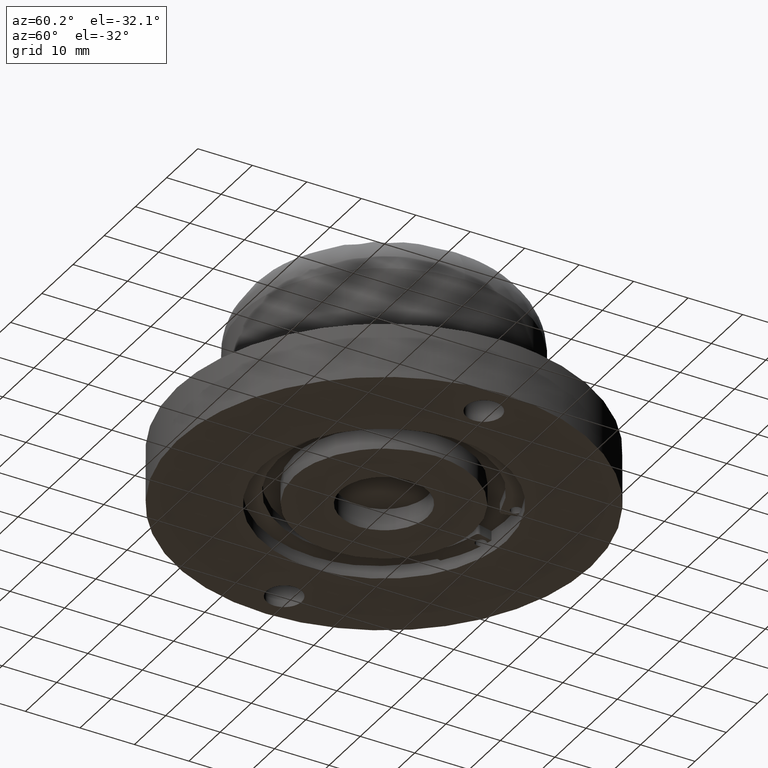
[diagram: clean part render]
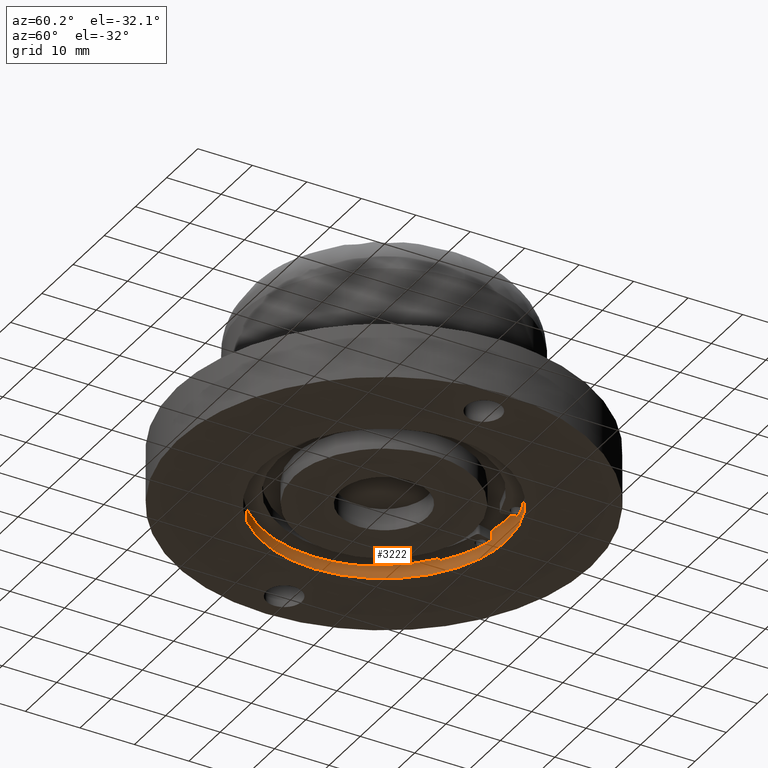
[diagram: same view with one face highlighted and labeled with its STEP entity id]
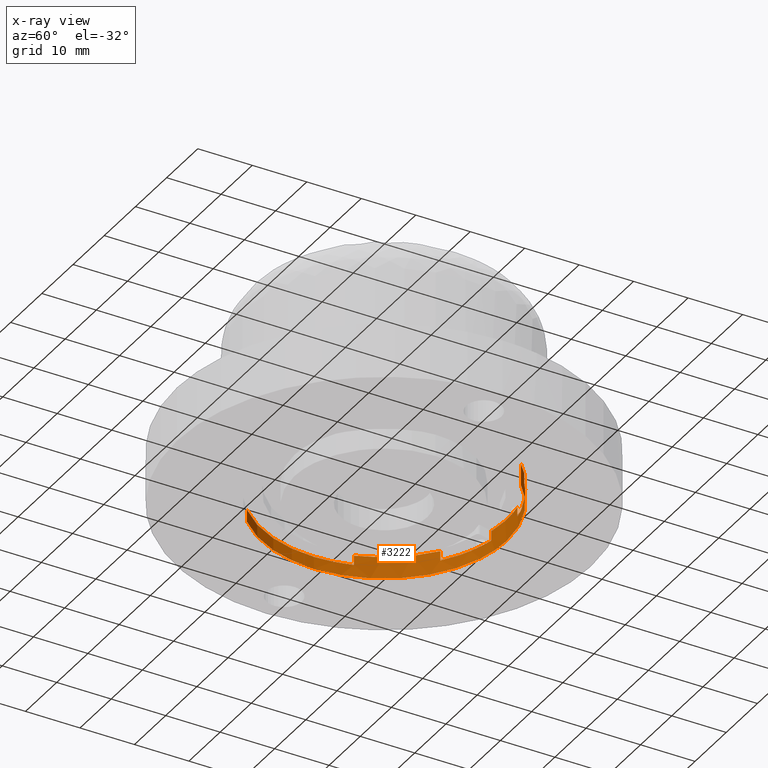
[diagram: x-ray of the same camera — body ghosted, the highlighted face saturated]
A machine part, auxiliary view. The second image highlights one B-rep face of the part: STEP entity #3222.
The next image is the same camera in x-ray: the body ghosted, the highlighted face saturated — about 0% of this face is hidden behind the body in this view.
In plain terms, the highlighted face is a freeform B-spline surface patch.
Its self-contained STEP definition (entity closure, byte-faithful):
#2364=CARTESIAN_POINT('',(-6.504722062905779,21.539233758059900,2.250000000000085));
#2365=VERTEX_POINT('',#2364);
#2366=CARTESIAN_POINT('',(-5.136362327996740,21.905884643984049,2.249999999999975));
#2367=VERTEX_POINT('',#2366);
#2380=CARTESIAN_POINT('',(-6.504722062905779,21.539233758059900,2.250000000000085));
#2381=CARTESIAN_POINT('',(-6.052603375519502,21.675773003639279,2.250000000000120));
#2382=CARTESIAN_POINT('',(-5.596178668092146,21.798070426248529,2.250000000000086));
#2383=CARTESIAN_POINT('',(-5.136362327996740,21.905884643984049,2.249999999999975));
#2384=B_SPLINE_CURVE_WITH_KNOTS('',3,(#2380,#2381,#2382,#2383),.UNSPECIFIED.,.F.,.U.,(4,4),(8.495293E-011,1.416867989774829),.UNSPECIFIED.);
#2385=EDGE_CURVE('',#2365,#2367,#2384,.T.);
#2470=CARTESIAN_POINT('',(5.136362327996699,21.905884643983999,2.249999999999975));
#2471=VERTEX_POINT('',#2470);
#2472=CARTESIAN_POINT('',(6.504722062905819,21.539233758059851,2.249999999999970));
#2473=VERTEX_POINT('',#2472);
#2485=CARTESIAN_POINT('',(5.136362327996699,21.905884643983999,2.249999999999975));
#2486=CARTESIAN_POINT('',(5.596179052469611,21.798070861049862,2.250000000000087));
#2487=CARTESIAN_POINT('',(6.052602842987307,21.675772483433452,2.250000000000085));
#2488=CARTESIAN_POINT('',(6.504722062905819,21.539233758059851,2.249999999999970));
#2489=B_SPLINE_CURVE_WITH_KNOTS('',3,(#2485,#2486,#2487,#2488),.UNSPECIFIED.,.F.,.U.,(4,4),(8.500756E-011,1.416867989774910),.UNSPECIFIED.);
#2490=EDGE_CURVE('',#2471,#2473,#2489,.T.);
#2514=CARTESIAN_POINT('',(13.429906843272720,18.052357247213351,4.0));
#2515=VERTEX_POINT('',#2514);
#2521=CARTESIAN_POINT('',(15.588206037484660,16.225222110434320,4.0));
#2522=VERTEX_POINT('',#2521);
#2523=CARTESIAN_POINT('',(13.429906843272720,18.052357247213351,4.0));
#2524=CARTESIAN_POINT('',(14.186702809971070,17.489372663616720,3.999999999999996));
#2525=CARTESIAN_POINT('',(14.908031253016111,16.878715912761059,4.000000000000003));
#2526=CARTESIAN_POINT('',(15.588206037484660,16.225222110434320,4.0));
#2527=B_SPLINE_CURVE_WITH_KNOTS('',3,(#2523,#2524,#2525,#2526),.UNSPECIFIED.,.F.,.U.,(4,4),(1.969314E-010,2.829711629103096),.UNSPECIFIED.);
#2528=EDGE_CURVE('',#2515,#2522,#2527,.T.);
#2577=CARTESIAN_POINT('',(15.588206218042719,16.225222286121198,-2.081668E-016));
#2578=VERTEX_POINT('',#2577);
#2590=CARTESIAN_POINT('',(0.000001007943022,22.499999999999979,0.0));
#2591=VERTEX_POINT('',#2590);
#2592=CARTESIAN_POINT('',(0.000001007943022,22.499999999999979,0.0));
#2593=CARTESIAN_POINT('',(1.031464791061655,22.500033471332500,-1.377429E-017));
#2594=CARTESIAN_POINT('',(3.228932577952548,22.348660912380151,-4.311955E-017));
#2595=CARTESIAN_POINT('',(6.261045358694753,21.685711134553099,-8.361076E-017));
#2596=CARTESIAN_POINT('',(9.423053938257208,20.521510945276511,-1.258366E-016));
#2597=CARTESIAN_POINT('',(12.545096142598901,18.818792101076070,-1.675287E-016));
#2598=CARTESIAN_POINT('',(14.618098912824980,17.157415711087410,-1.952119E-016));
#2599=CARTESIAN_POINT('',(15.588206218042719,16.225222286121198,-2.081668E-016));
#2600=B_SPLINE_CURVE_WITH_KNOTS('',3,(#2592,#2593,#2594,#2595,#2596,#2597,#2598,#2599),.UNSPECIFIED.,.F.,.U.,(4,1,1,1,1,4),(0.000000014214987,3.094395130818073,6.592423928549126,9.283186648686776,13.184840179715060,17.221014950261349),.UNSPECIFIED.);
#2601=EDGE_CURVE('',#2591,#2578,#2600,.T.);
#2603=CARTESIAN_POINT('',(-22.500000000000000,0.0,0.0));
#2604=VERTEX_POINT('',#2603);
#2605=CARTESIAN_POINT('',(-22.500000000000000,0.0,0.0));
#2606=CARTESIAN_POINT('',(-22.500182952519751,1.426608487800824,0.0));
#2607=CARTESIAN_POINT('',(-22.271602457947129,3.819550678833491,0.0));
#2608=CARTESIAN_POINT('',(-21.504889394045509,6.764989242450687,0.0));
#2609=CARTESIAN_POINT('',(-20.640253703201800,9.048035004577629,0.0));
#2610=CARTESIAN_POINT('',(-19.412171256211611,11.525781350607859,0.0));
#2611=CARTESIAN_POINT('',(-17.556918538102359,14.229992154828681,0.0));
#2612=CARTESIAN_POINT('',(-15.289956082207761,16.596348971107549,0.0));
#2613=CARTESIAN_POINT('',(-13.202865483555570,18.266672343695390,0.0));
#2614=CARTESIAN_POINT('',(-10.997410584448099,19.691923614740031,0.0));
#2615=CARTESIAN_POINT('',(-8.799577607448827,20.764623508752809,0.0));
#2616=CARTESIAN_POINT('',(-6.235194483915689,21.664431573952431,0.0));
#2617=CARTESIAN_POINT('',(-3.451428743835828,22.316547335375500,0.0));
#2618=CARTESIAN_POINT('',(-1.242527725207736,22.500094324819219,0.0));
#2619=CARTESIAN_POINT('',(0.000001007943022,22.499999999999979,0.0));
#2620=B_SPLINE_CURVE_WITH_KNOTS('',3,(#2605,#2606,#2607,#2608,#2609,#2610,#2611,#2612,#2613,#2614,#2615,#2616,#2617,#2618,#2619),.UNSPECIFIED.,.F.,.U.,(4,1,1,1,1,1,1,1,1,1,1,1,4),(0.000000054817100,4.279790776276776,7.179041361886796,9.111861811800601,11.596917949561940,15.462580665357670,18.913978660476051,21.399065161999069,23.469928968909532,26.783347539134891,28.716177032756210,31.615394907741042,35.342973363759093),.UNSPECIFIED.);
#2621=EDGE_CURVE('',#2604,#2591,#2620,.T.);
#2623=CARTESIAN_POINT('',(-15.588206217749841,-16.225222286402900,4.926615E-016));
#2624=VERTEX_POINT('',#2623);
#2625=CARTESIAN_POINT('',(-15.588206217749841,-16.225222286402900,4.926615E-016));
#2626=CARTESIAN_POINT('',(-16.268846323597760,-15.571326525871120,4.728066E-016));
#2627=CARTESIAN_POINT('',(-17.771532666538949,-13.933881893660290,4.230874E-016));
#2628=CARTESIAN_POINT('',(-19.708489801419599,-11.069884337755781,3.361252E-016));
#2629=CARTESIAN_POINT('',(-21.182002428894140,-7.838706148008069,2.380139E-016));
#2630=CARTESIAN_POINT('',(-22.229352483005300,-4.152850421680977,1.260968E-016));
#2631=CARTESIAN_POINT('',(-22.500261468602311,-1.557377847287326,4.728811E-017));
#2632=CARTESIAN_POINT('',(-22.500000000000000,0.0,0.0));
#2633=B_SPLINE_CURVE_WITH_KNOTS('',3,(#2625,#2626,#2627,#2628,#2629,#2630,#2631,#2632),.UNSPECIFIED.,.F.,.U.,(4,1,1,1,1,4),(0.000000014761255,2.831553560492784,6.654165831719793,10.335163101000580,13.449889630315999,18.121957143681879),.UNSPECIFIED.);
#2634=EDGE_CURVE('',#2624,#2604,#2633,.T.);
#2685=CARTESIAN_POINT('',(-4.164708885764315,22.111200779171551,4.0));
#2686=VERTEX_POINT('',#2685);
#2692=CARTESIAN_POINT('',(4.164708885764285,22.111200779171551,4.0));
#2693=VERTEX_POINT('',#2692);
#2694=CARTESIAN_POINT('',(-4.164708885764315,22.111200779171551,4.0));
#2695=CARTESIAN_POINT('',(-2.835442292612624,22.361724385078549,3.999999999999996));
#2696=CARTESIAN_POINT('',(-0.044390171950859,22.630172406018200,4.000000000000012));
#2697=CARTESIAN_POINT('',(2.749692616212752,22.377918640221210,3.999999999999996));
#2698=CARTESIAN_POINT('',(4.164708885764285,22.111200779171551,4.0));
#2699=B_SPLINE_CURVE_WITH_KNOTS('',3,(#2694,#2695,#2696,#2697,#2698),.UNSPECIFIED.,.F.,.U.,(4,1,4),(3.359716E-009,4.057977084328424,8.377741030497079),.UNSPECIFIED.);
#2700=EDGE_CURVE('',#2686,#2693,#2699,.T.);
#2792=CARTESIAN_POINT('',(-21.461298704985850,6.757415030569869,4.0));
#2793=VERTEX_POINT('',#2792);
#2794=CARTESIAN_POINT('',(-13.429906843272740,18.052357247213351,4.0));
#2795=VERTEX_POINT('',#2794);
#2796=CARTESIAN_POINT('',(-21.461298704985850,6.757415030569869,4.0));
#2797=CARTESIAN_POINT('',(-21.064756132127030,8.017268113349665,4.0));
#2798=CARTESIAN_POINT('',(-20.218073700707521,10.058459909686210,4.0));
#2799=CARTESIAN_POINT('',(-18.480202155929081,12.958793517843320,4.0));
#2800=CARTESIAN_POINT('',(-16.359714987495050,15.598159671998120,4.000000000000008));
#2801=CARTESIAN_POINT('',(-14.489680425976561,17.264098553640029,3.999999999999995));
#2802=CARTESIAN_POINT('',(-13.429906843272740,18.052357247213351,4.0));
#2803=B_SPLINE_CURVE_WITH_KNOTS('',3,(#2796,#2797,#2798,#2799,#2800,#2801,#2802),.UNSPECIFIED.,.F.,.U.,(4,1,1,1,4),(8.759422E-009,3.962332634549968,6.603894214295061,10.125954718178670,14.088287343969419),.UNSPECIFIED.);
#2804=EDGE_CURVE('',#2793,#2795,#2803,.T.);
#3058=CARTESIAN_POINT('',(-15.588206031640730,-16.225222116048808,2.250000000000231));
#3059=VERTEX_POINT('',#3058);
#3060=CARTESIAN_POINT('',(-15.588206031640730,-16.225222116048808,2.250000000000231));
#3061=CARTESIAN_POINT('',(-15.588206217749841,-16.225222286402900,4.926615E-016));
#3062=QUASI_UNIFORM_CURVE('',1,(#3060,#3061),.UNSPECIFIED.,.F.,.U.);
#3063=EDGE_CURVE('',#3059,#2624,#3062,.T.);
#3105=CARTESIAN_POINT('',(15.588206037484660,16.225222110434320,4.0));
#3106=CARTESIAN_POINT('',(15.588206218042719,16.225222286121198,-2.081668E-016));
#3107=QUASI_UNIFORM_CURVE('',1,(#3105,#3106),.UNSPECIFIED.,.F.,.U.);
#3108=EDGE_CURVE('',#2522,#2578,#3107,.T.);
#3113=CARTESIAN_POINT('',(-15.588206055318709,-16.225222093300449,4.100000000000000));
#3114=CARTESIAN_POINT('',(-31.813428148619156,-0.637016037981732,4.100000000000000));
#3115=CARTESIAN_POINT('',(-16.225222093300449,15.588206055318709,4.100000000000000));
#3116=CARTESIAN_POINT('',(-0.637016037981732,31.813428148619156,4.100000000000000));
#3117=CARTESIAN_POINT('',(15.588206055318709,16.225222093300449,4.100000000000000));
#3118=CARTESIAN_POINT('',(-15.588206055318709,-16.225222093300449,-0.102500000000000));
#3119=CARTESIAN_POINT('',(-31.813428148619156,-0.637016037981732,-0.102500000000000));
#3120=CARTESIAN_POINT('',(-16.225222093300449,15.588206055318709,-0.102500000000000));
#3121=CARTESIAN_POINT('',(-0.637016037981732,31.813428148619156,-0.102500000000000));
#3122=CARTESIAN_POINT('',(15.588206055318709,16.225222093300449,-0.102500000000000));
#3130=(BOUNDED_SURFACE()B_SPLINE_SURFACE(2,1,((#3113,#3118),(#3114,#3119),(#3115,#3120),(#3116,#3121),(#3117,#3122)),.UNSPECIFIED.,.F.,.F.,.U.)B_SPLINE_SURFACE_WITH_KNOTS((3,2,3),(2,2),(0.0,37.279220613578552,74.558441227157104),(0.0,4.202500000000000),.UNSPECIFIED.)GEOMETRIC_REPRESENTATION_ITEM()RATIONAL_B_SPLINE_SURFACE(((1.0,1.0),(0.707106781186548,0.707106781186548),(1.0,1.0),(0.707106781186548,0.707106781186548),(1.0,1.0)))REPRESENTATION_ITEM('')SURFACE());
#3131=ORIENTED_EDGE('',*,*,#2601,.T.);
#3132=ORIENTED_EDGE('',*,*,#3108,.F.);
#3133=ORIENTED_EDGE('',*,*,#2528,.F.);
#3134=CARTESIAN_POINT('',(13.429906843272720,18.052357247213351,2.249999999999975));
#3135=VERTEX_POINT('',#3134);
#3136=CARTESIAN_POINT('',(13.429906843272720,18.052357247213351,4.0));
#3137=CARTESIAN_POINT('',(13.429906843272720,18.052357247213351,2.249999999999975));
#3138=QUASI_UNIFORM_CURVE('',1,(#3136,#3137),.UNSPECIFIED.,.F.,.U.);
#3139=EDGE_CURVE('',#2515,#3135,#3138,.T.);
#3140=ORIENTED_EDGE('',*,*,#3139,.T.);
#3141=CARTESIAN_POINT('',(6.504722062905819,21.539233758059851,2.249999999999970));
#3142=CARTESIAN_POINT('',(7.825749606657813,21.140452039059269,2.250000000000028));
#3143=CARTESIAN_POINT('',(10.242878679704710,20.159882068117909,2.250000000000089));
#3144=CARTESIAN_POINT('',(12.453067975057310,18.779163440677451,2.250000000000020));
#3145=CARTESIAN_POINT('',(13.429906843272720,18.052357247213351,2.249999999999975));
#3146=B_SPLINE_CURVE_WITH_KNOTS('',3,(#3141,#3142,#3143,#3144,#3145),.UNSPECIFIED.,.F.,.U.,(4,1,4),(2.658856E-009,4.139694375157747,7.792376969703537),.UNSPECIFIED.);
#3147=EDGE_CURVE('',#2473,#3135,#3146,.T.);
#3148=ORIENTED_EDGE('',*,*,#3147,.F.);
#3149=ORIENTED_EDGE('',*,*,#2490,.F.);
#3150=CARTESIAN_POINT('',(4.164708885764285,22.111200779171551,2.249999999999975));
#3151=VERTEX_POINT('',#3150);
#3152=CARTESIAN_POINT('',(4.164708885764285,22.111200779171551,2.249999999999975));
#3153=CARTESIAN_POINT('',(4.490051368506639,22.049921979212961,2.250000000000079));
#3154=CARTESIAN_POINT('',(4.814041090165105,21.981460827876461,2.250000000000085));
#3155=CARTESIAN_POINT('',(5.136362327996699,21.905884643983999,2.249999999999975));
#3156=B_SPLINE_CURVE_WITH_KNOTS('',3,(#3152,#3153,#3154,#3155),.UNSPECIFIED.,.F.,.U.,(4,4),(3.004352E-011,0.993190711665721),.UNSPECIFIED.);
#3157=EDGE_CURVE('',#3151,#2471,#3156,.T.);
#3158=ORIENTED_EDGE('',*,*,#3157,.F.);
#3159=CARTESIAN_POINT('',(4.164708885764285,22.111200779171551,4.0));
#3160=CARTESIAN_POINT('',(4.164708885764285,22.111200779171551,2.249999999999975));
#3161=QUASI_UNIFORM_CURVE('',1,(#3159,#3160),.UNSPECIFIED.,.F.,.U.);
#3162=EDGE_CURVE('',#2693,#3151,#3161,.T.);
#3163=ORIENTED_EDGE('',*,*,#3162,.F.);
#3164=ORIENTED_EDGE('',*,*,#2700,.F.);
#3165=CARTESIAN_POINT('',(-4.164708885764300,22.111200779171551,2.249999999999975));
#3166=VERTEX_POINT('',#3165);
#3167=CARTESIAN_POINT('',(-4.164708885764315,22.111200779171551,4.0));
#3168=CARTESIAN_POINT('',(-4.164708885764300,22.111200779171551,2.249999999999975));
#3169=QUASI_UNIFORM_CURVE('',1,(#3167,#3168),.UNSPECIFIED.,.F.,.U.);
#3170=EDGE_CURVE('',#2686,#3166,#3169,.T.);
#3171=ORIENTED_EDGE('',*,*,#3170,.T.);
#3172=CARTESIAN_POINT('',(-5.136362327996740,21.905884643984049,2.249999999999975));
#3173=CARTESIAN_POINT('',(-4.814041013303416,21.981461045695742,2.250000000000080));
#3174=CARTESIAN_POINT('',(-4.490051210096848,22.049921811107961,2.250000000000088));
#3175=CARTESIAN_POINT('',(-4.164708885764300,22.111200779171551,2.249999999999975));
#3176=B_SPLINE_CURVE_WITH_KNOTS('',3,(#3172,#3173,#3174,#3175),.UNSPECIFIED.,.F.,.U.,(4,4),(3.001910E-011,0.993190711665735),.UNSPECIFIED.);
#3177=EDGE_CURVE('',#2367,#3166,#3176,.T.);
#3178=ORIENTED_EDGE('',*,*,#3177,.F.);
#3179=ORIENTED_EDGE('',*,*,#2385,.F.);
#3180=CARTESIAN_POINT('',(-13.429906843272740,18.052357247213351,2.249999999999975));
#3181=VERTEX_POINT('',#3180);
#3182=CARTESIAN_POINT('',(-13.429906843272740,18.052357247213351,2.249999999999975));
#3183=CARTESIAN_POINT('',(-12.127546399424160,19.021590214097401,2.250000000000024));
#3184=CARTESIAN_POINT('',(-9.874924738383793,20.345086119490379,2.250000000000066));
#3185=CARTESIAN_POINT('',(-7.437173862098574,21.257648964394718,2.250000000000092));
#3186=CARTESIAN_POINT('',(-6.504722062905779,21.539233758059900,2.250000000000085));
#3187=B_SPLINE_CURVE_WITH_KNOTS('',3,(#3182,#3183,#3184,#3185,#3186),.UNSPECIFIED.,.F.,.U.,(4,1,4),(2.657263E-009,4.870235564347039,7.792376969703619),.UNSPECIFIED.);
#3188=EDGE_CURVE('',#3181,#2365,#3187,.T.);
#3189=ORIENTED_EDGE('',*,*,#3188,.F.);
#3190=CARTESIAN_POINT('',(-13.429906843272740,18.052357247213351,4.0));
#3191=CARTESIAN_POINT('',(-13.429906843272740,18.052357247213351,2.249999999999975));
#3192=QUASI_UNIFORM_CURVE('',1,(#3190,#3191),.UNSPECIFIED.,.F.,.U.);
#3193=EDGE_CURVE('',#2795,#3181,#3192,.T.);
#3194=ORIENTED_EDGE('',*,*,#3193,.F.);
#3195=ORIENTED_EDGE('',*,*,#2804,.F.);
#3196=CARTESIAN_POINT('',(-21.461298704985850,6.757415030569869,2.249999999999975));
#3197=VERTEX_POINT('',#3196);
#3198=CARTESIAN_POINT('',(-21.461298704985850,6.757415030569869,4.0));
#3199=CARTESIAN_POINT('',(-21.461298704985850,6.757415030569869,2.249999999999975));
#3200=QUASI_UNIFORM_CURVE('',1,(#3198,#3199),.UNSPECIFIED.,.F.,.U.);
#3201=EDGE_CURVE('',#2793,#3197,#3200,.T.);
#3202=ORIENTED_EDGE('',*,*,#3201,.T.);
#3203=CARTESIAN_POINT('',(-15.588206031640730,-16.225222116048808,2.250000000000231));
#3204=CARTESIAN_POINT('',(-16.151249505209471,-15.684291293318550,2.250000000000231));
#3205=CARTESIAN_POINT('',(-17.443860080371380,-14.306153364236280,2.250000000000231));
#3206=CARTESIAN_POINT('',(-19.014549700930392,-12.140902122889690,2.250000000000225));
#3207=CARTESIAN_POINT('',(-20.299377398937779,-9.798845602539418,2.250000000000207));
#3208=CARTESIAN_POINT('',(-21.207731091901881,-7.636334505541870,2.250000000000194));
#3209=CARTESIAN_POINT('',(-22.037408065302319,-4.892231861658053,2.250000000000155));
#3210=CARTESIAN_POINT('',(-22.530682785145839,-1.730245838730146,2.250000000000115));
#3211=CARTESIAN_POINT('',(-22.507123157731218,2.380021194033896,2.250000000000067));
#3212=CARTESIAN_POINT('',(-21.969694366550680,5.143869145987814,2.249999999999993));
#3213=CARTESIAN_POINT('',(-21.461298704985850,6.757415030569869,2.249999999999975));
#3214=B_SPLINE_CURVE_WITH_KNOTS('',3,(#3203,#3204,#3205,#3206,#3207,#3208,#3209,#3210,#3211,#3212,#3213),.UNSPECIFIED.,.F.,.U.,(4,1,1,1,1,1,1,1,4),(3.581281E-009,2.342361476444427,5.660743957281731,8.003130144586887,10.345505795545041,12.687879596696771,16.591834669168829,19.910217200046372,24.985363715567939),.UNSPECIFIED.);
#3215=EDGE_CURVE('',#3059,#3197,#3214,.T.);
#3216=ORIENTED_EDGE('',*,*,#3215,.F.);
#3217=ORIENTED_EDGE('',*,*,#3063,.T.);
#3218=ORIENTED_EDGE('',*,*,#2634,.T.);
#3219=ORIENTED_EDGE('',*,*,#2621,.T.);
#3220=EDGE_LOOP('',(#3131,#3132,#3133,#3140,#3148,#3149,#3158,#3163,#3164,#3171,#3178,#3179,#3189,#3194,#3195,#3202,#3216,#3217,#3218,#3219));
#3221=FACE_OUTER_BOUND('',#3220,.T.);
#3222=ADVANCED_FACE('',(#3221),#3130,.F.);